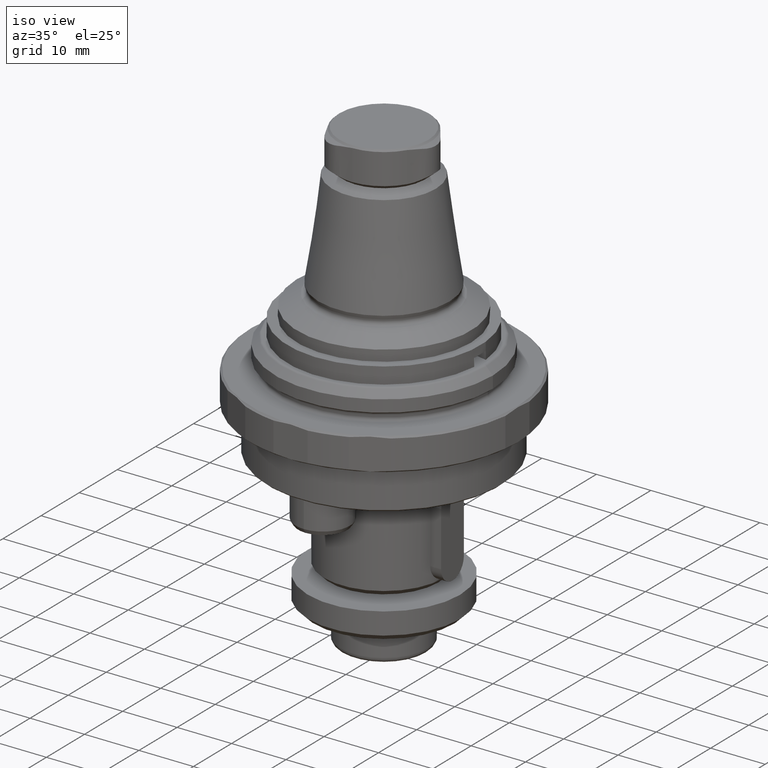
[diagram: clean part render]
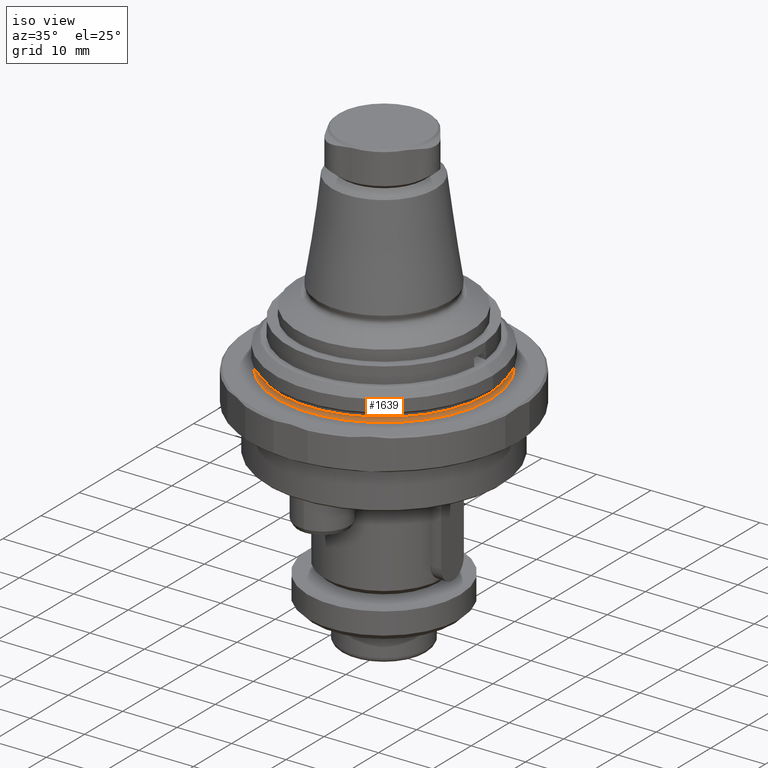
[diagram: same view with one face highlighted and labeled with its STEP entity id]
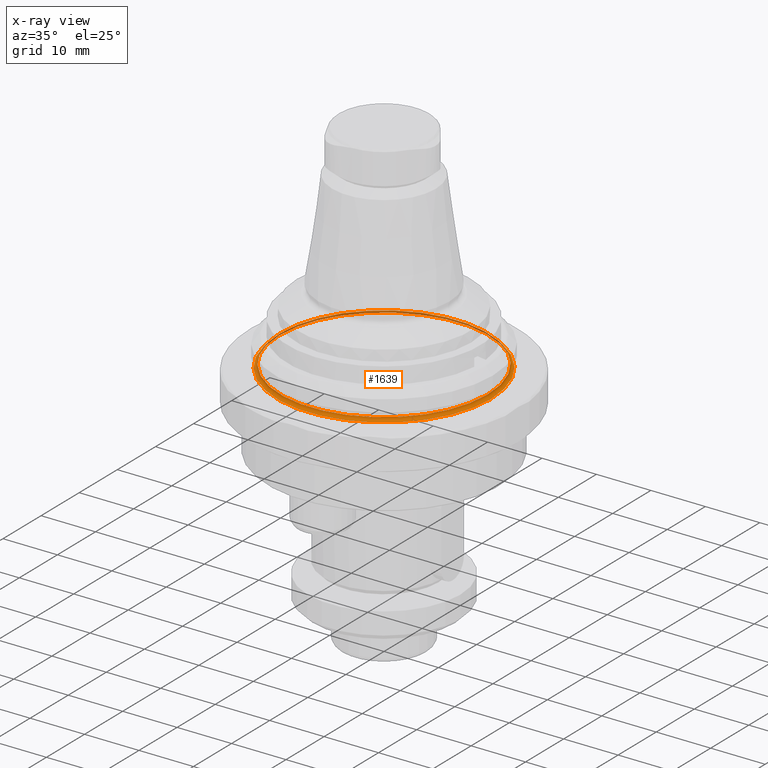
[diagram: x-ray of the same camera — body ghosted, the highlighted face saturated]
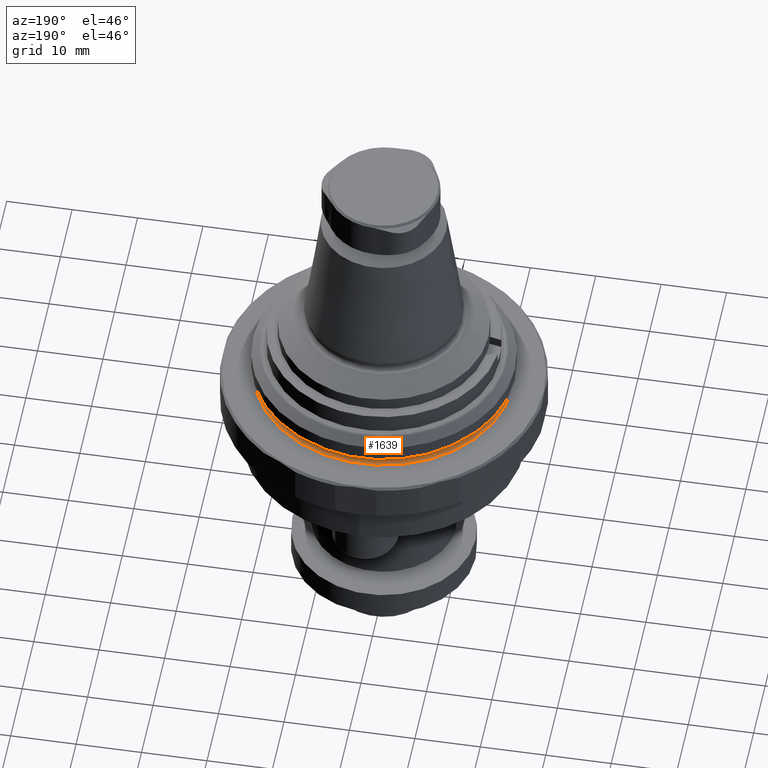
[diagram: same view with one face highlighted and labeled with its STEP entity id]
A machine part, iso view. The second image highlights one B-rep face of the part: STEP entity #1639.
The next image is the same camera in x-ray: the body ghosted, the highlighted face saturated — about 23% of this face is hidden behind the body in this view.
A second angle (auxiliary view) of the same face is appended — the face is thin or edge-on in the first view.
In plain terms, the highlighted toroidal blend (fillet) surface has major radius 19.65 mm and minor (blend) radius 0.6 mm.
Its self-contained STEP definition (entity closure, byte-faithful):
#24=TOROIDAL_SURFACE('',#1823,19.65,0.6);
#574=ORIENTED_EDGE('',*,*,#923,.F.);
#575=ORIENTED_EDGE('',*,*,#888,.T.);
#888=EDGE_CURVE('',#1074,#1074,#1187,.T.);
#923=EDGE_CURVE('',#1100,#1100,#1204,.T.);
#1074=VERTEX_POINT('',#2799);
#1100=VERTEX_POINT('',#2876);
#1187=CIRCLE('',#1791,19.05);
#1204=CIRCLE('',#1824,19.65);
#1329=EDGE_LOOP('',(#574));
#1330=EDGE_LOOP('',(#575));
#1489=FACE_BOUND('',#1329,.T.);
#1490=FACE_BOUND('',#1330,.T.);
#1639=ADVANCED_FACE('',(#1489,#1490),#24,.F.);
#1791=AXIS2_PLACEMENT_3D('',#2798,#2122,#2123);
#1823=AXIS2_PLACEMENT_3D('',#2874,#2204,#2205);
#1824=AXIS2_PLACEMENT_3D('',#2875,#2206,#2207);
#2122=DIRECTION('',(-2.60563148754756E-18,-2.60563148754756E-18,-1.));
#2123=DIRECTION('',(1.,-6.12303176911189E-17,-2.60563148754756E-18));
#2204=DIRECTION('',(-2.60563148754756E-18,-2.60563148754756E-18,-1.));
#2205=DIRECTION('',(1.,-6.12303176911189E-17,-2.60563148754756E-18));
#2206=DIRECTION('',(-2.60563148754756E-18,-2.60563148754756E-18,-1.));
#2207=DIRECTION('',(1.,-6.12303176911189E-17,-2.60563148754756E-18));
#2798=CARTESIAN_POINT('',(-2.0323925602871E-17,-2.0323925602871E-17,-0.400000000000011));
#2799=CARTESIAN_POINT('',(19.05,-1.18676147761869E-15,-0.400000000000011));
#2874=CARTESIAN_POINT('',(-2.0323925602871E-17,-2.0323925602871E-17,-0.400000000000011));
#2875=CARTESIAN_POINT('',(-2.18873044953995E-17,-2.18873044953995E-17,-1.00000000000001));
#2876=CARTESIAN_POINT('',(19.65,-1.22506304712589E-15,-1.00000000000001));